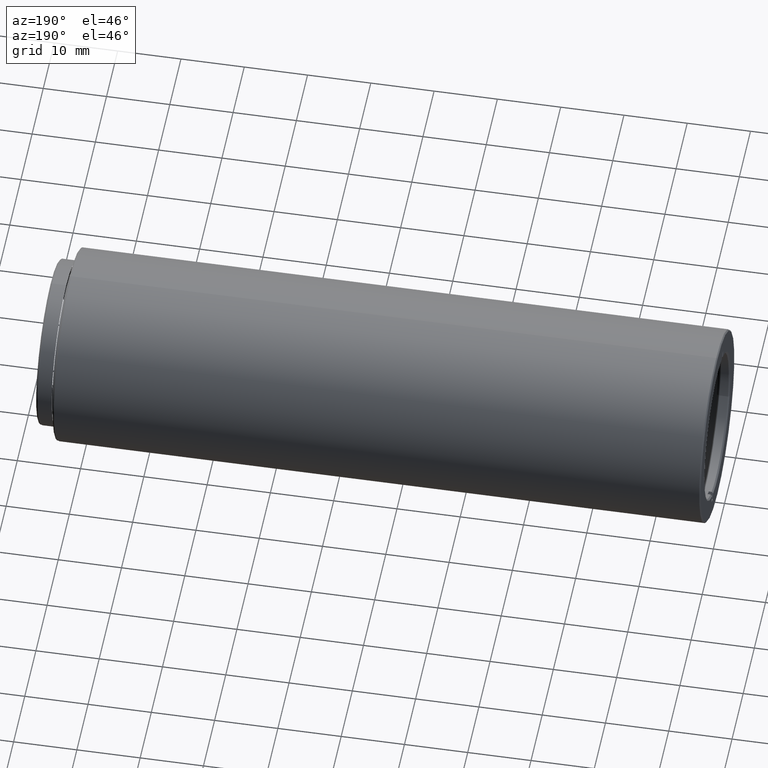
[diagram: clean part render]
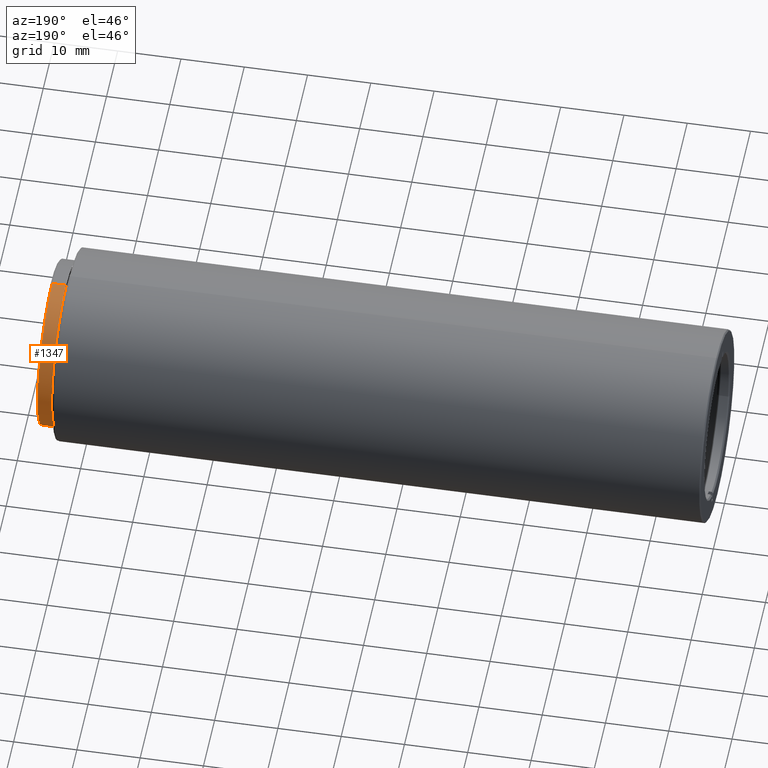
[diagram: same view with one face highlighted and labeled with its STEP entity id]
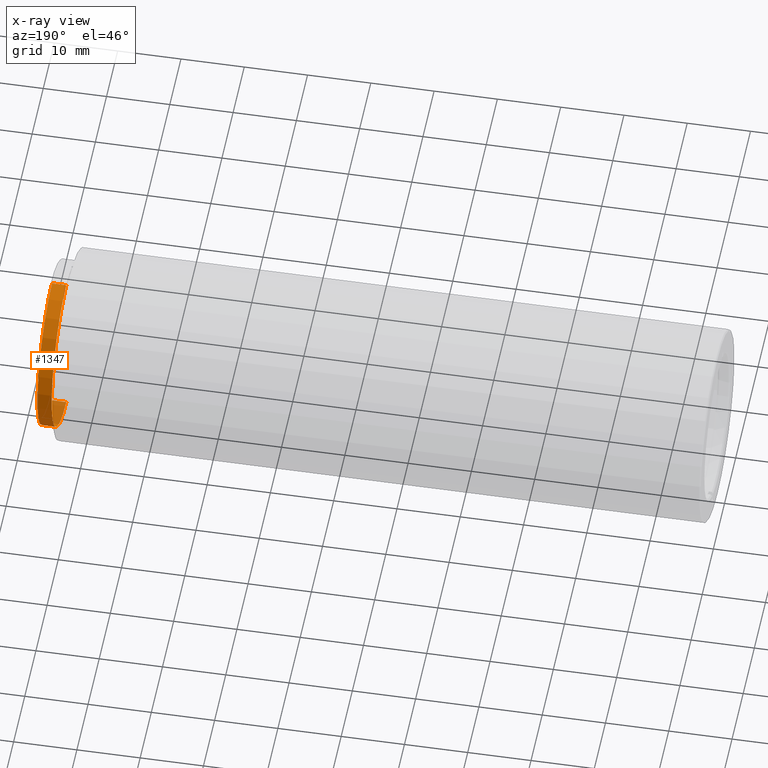
[diagram: x-ray of the same camera — body ghosted, the highlighted face saturated]
A machine part, auxiliary view. The second image highlights one B-rep face of the part: STEP entity #1347.
The next image is the same camera in x-ray: the body ghosted, the highlighted face saturated — about 10% of this face is hidden behind the body in this view.
In plain terms, the highlighted cylindrical surface (partial cylindrical patch) has radius 13.1 mm, axis along (-1, -0, -0).
Its self-contained STEP definition (entity closure, byte-faithful):
#30 = VERTEX_POINT ( 'NONE', #131 ) ;
#31 = ORIENTED_EDGE ( 'NONE', *, *, #980, .F. ) ;
#131 = CARTESIAN_POINT ( 'NONE',  ( 6.275999999999984702, -20.10857142857141966, -13.10000000000000142 ) ) ;
#165 = CIRCLE ( 'NONE', #280, 13.10000000000000142 ) ;
#219 = DIRECTION ( 'NONE',  ( 0.000000000000000000, 0.000000000000000000, -1.000000000000000000 ) ) ;
#280 = AXIS2_PLACEMENT_3D ( 'NONE', #1197, #966, #219 ) ;
#402 = VERTEX_POINT ( 'NONE', #1106 ) ;
#473 = VECTOR ( 'NONE', #756, 1000.000000000000000 ) ;
#512 = EDGE_CURVE ( 'NONE', #30, #1092, #1226, .T. ) ;
#569 = VECTOR ( 'NONE', #884, 1000.000000000000000 ) ;
#577 = EDGE_CURVE ( 'NONE', #1361, #30, #988, .T. ) ;
#611 = ORIENTED_EDGE ( 'NONE', *, *, #1191, .T. ) ;
#613 = DIRECTION ( 'NONE',  ( 0.000000000000000000, 0.000000000000000000, 1.000000000000000000 ) ) ;
#630 = CARTESIAN_POINT ( 'NONE',  ( 6.275999999999984702, -20.10857142857141966, 13.10000000000000142 ) ) ;
#640 = AXIS2_PLACEMENT_3D ( 'NONE', #1269, #1507, #649 ) ;
#649 = DIRECTION ( 'NONE',  ( 0.000000000000000000, 0.000000000000000000, -1.000000000000000000 ) ) ;
#736 = CYLINDRICAL_SURFACE ( 'NONE', #1492, 13.10000000000000142 ) ;
#756 = DIRECTION ( 'NONE',  ( -1.000000000000000000, -0.000000000000000000, -0.000000000000000000 ) ) ;
#884 = DIRECTION ( 'NONE',  ( -1.000000000000000000, -0.000000000000000000, -0.000000000000000000 ) ) ;
#920 = ORIENTED_EDGE ( 'NONE', *, *, #512, .T. ) ;
#966 = DIRECTION ( 'NONE',  ( 1.000000000000000000, 0.000000000000000000, 0.000000000000000000 ) ) ;
#980 = EDGE_CURVE ( 'NONE', #1361, #402, #1389, .T. ) ;
#988 = CIRCLE ( 'NONE', #640, 13.10000000000000142 ) ;
#1013 = ORIENTED_EDGE ( 'NONE', *, *, #577, .T. ) ;
#1092 = VERTEX_POINT ( 'NONE', #1279 ) ;
#1101 = CARTESIAN_POINT ( 'NONE',  ( 6.525999999999982926, -20.10857142857141966, 0.000000000000000000 ) ) ;
#1106 = CARTESIAN_POINT ( 'NONE',  ( 4.025999999999982926, -20.10857142857141966, 13.10000000000000142 ) ) ;
#1126 = CARTESIAN_POINT ( 'NONE',  ( 6.525999999999982926, -20.10857142857141966, -13.10000000000000142 ) ) ;
#1135 = EDGE_LOOP ( 'NONE', ( #1013, #920, #611, #31 ) ) ;
#1144 = CARTESIAN_POINT ( 'NONE',  ( 6.525999999999982926, -20.10857142857141966, 13.10000000000000142 ) ) ;
#1191 = EDGE_CURVE ( 'NONE', #1092, #402, #165, .T. ) ;
#1197 = CARTESIAN_POINT ( 'NONE',  ( 4.025999999999982926, -20.10857142857141966, 0.000000000000000000 ) ) ;
#1219 = FACE_OUTER_BOUND ( 'NONE', #1135, .T. ) ;
#1226 = LINE ( 'NONE', #1126, #569 ) ;
#1269 = CARTESIAN_POINT ( 'NONE',  ( 6.275999999999984702, -20.10857142857141966, 0.000000000000000000 ) ) ;
#1279 = CARTESIAN_POINT ( 'NONE',  ( 4.025999999999982926, -20.10857142857141966, -13.10000000000000142 ) ) ;
#1347 = ADVANCED_FACE ( 'NONE', ( #1219 ), #736, .T. ) ;
#1348 = DIRECTION ( 'NONE',  ( -1.000000000000000000, -0.000000000000000000, -0.000000000000000000 ) ) ;
#1361 = VERTEX_POINT ( 'NONE', #630 ) ;
#1389 = LINE ( 'NONE', #1144, #473 ) ;
#1492 = AXIS2_PLACEMENT_3D ( 'NONE', #1101, #1348, #613 ) ;
#1507 = DIRECTION ( 'NONE',  ( -1.000000000000000000, 0.000000000000000000, 0.000000000000000000 ) ) ;